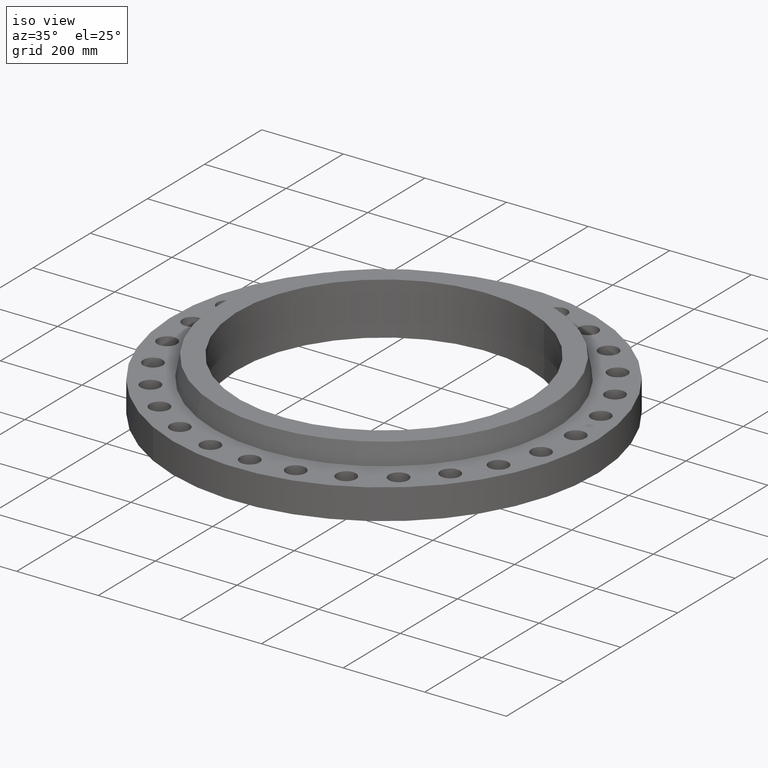
[diagram: clean part render]
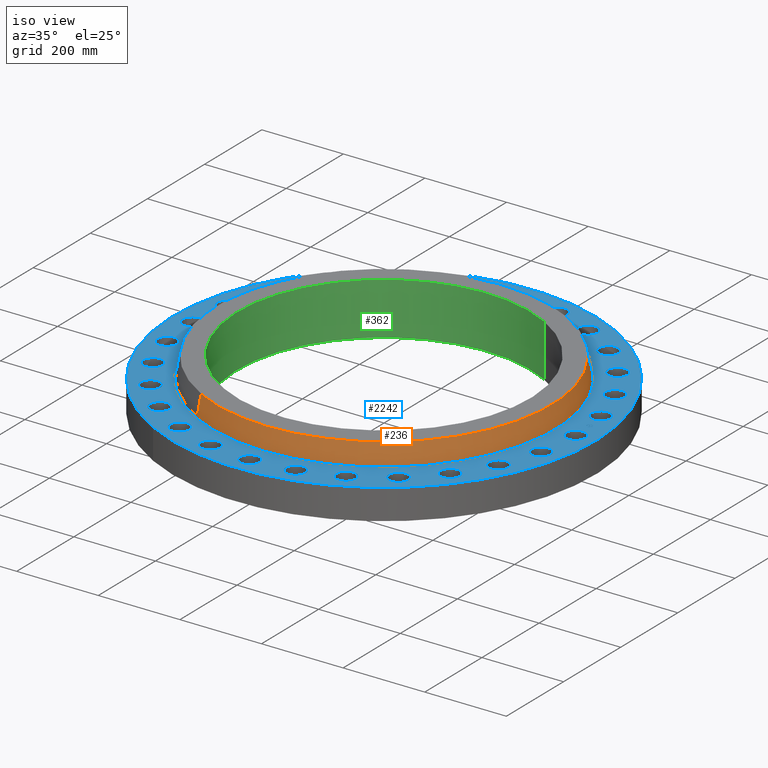
[diagram: same view with three faces highlighted in distinct colors, each labeled with its STEP entity id]
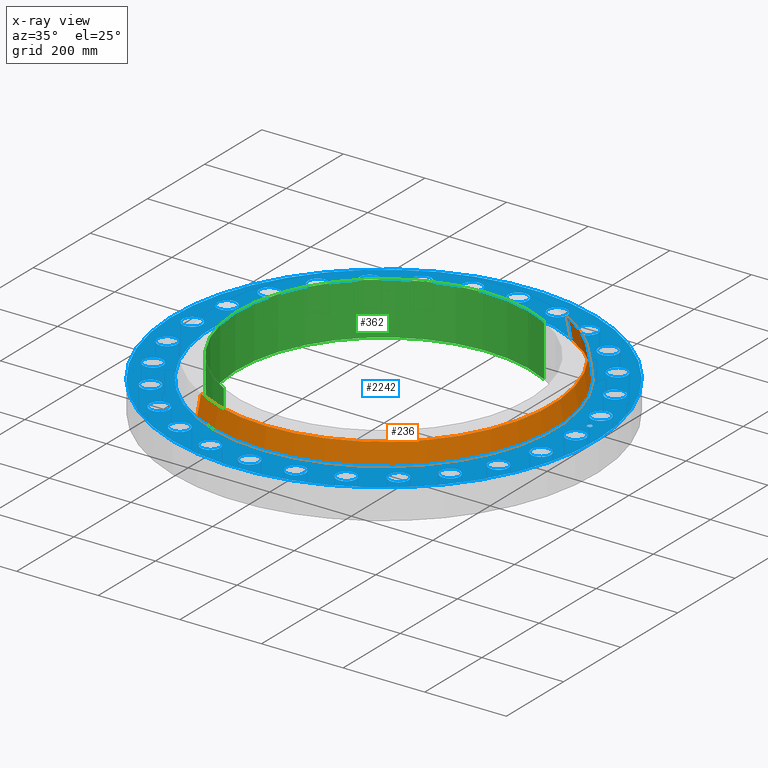
[diagram: x-ray of the same camera — body ghosted, the three highlighted faces saturated]
A machine part, iso view with three faces highlighted in distinct colors.
The next image is the same camera in x-ray (body ghosted, the three faces saturated) — at least one of them is partly hidden behind the body in this view.
Their STEP definitions:

[orange] entity #236 — the highlighted conical surface has half-angle 10 deg.
#172=AXIS2_PLACEMENT_3D('Circle Axis2P3D',#170,#171,$) ;
#209=AXIS2_PLACEMENT_3D('Cone Axis2P3D',#206,#207,#208) ;
#220=AXIS2_PLACEMENT_3D('Circle Axis2P3D',#218,#219,$) ;
#167=CARTESIAN_POINT('Vertex',(7.90633001531,14.4724400168,2.98958110935)) ;
#170=CARTESIAN_POINT('Axis2P3D Location',(0.,0.,2.98958110935)) ;
#174=CARTESIAN_POINT('Vertex',(-7.90633001531,-14.4724400168,2.98958110935)) ;
#206=CARTESIAN_POINT('Axis2P3D Location',(0.,0.,4.95041889068)) ;
#211=CARTESIAN_POINT('Line Origine',(7.82344965957,14.3207285433,3.97000000002)) ;
#215=CARTESIAN_POINT('Vertex',(7.74056930383,14.1690170697,4.95041889068)) ;
#218=CARTESIAN_POINT('Axis2P3D Location',(0.,0.,4.95041889068)) ;
#222=CARTESIAN_POINT('Vertex',(-7.74056930383,-14.1690170697,4.95041889068)) ;
#225=CARTESIAN_POINT('Line Origine',(-7.82344965957,-14.3207285433,3.97000000002)) ;
#171=DIRECTION('Axis2P3D Direction',(0.,0.,-0.0393700787402)) ;
#207=DIRECTION('Axis2P3D Direction',(0.,0.,-0.0393700787402)) ;
#208=DIRECTION('Axis2P3D XDirection',(-0.0188750212049,-0.0345504945626,0.)) ;
#212=DIRECTION('Vector Direction',(0.00327761303565,0.00599963041829,-0.03877195878)) ;
#219=DIRECTION('Axis2P3D Direction',(0.,0.,-0.0393700787402)) ;
#226=DIRECTION('Vector Direction',(-0.00327761303565,-0.00599963041829,-0.03877195878)) ;
#213=VECTOR('Line Direction',#212,0.0393700787402) ;
#227=VECTOR('Line Direction',#226,0.0393700787402) ;
#231=ORIENTED_EDGE('',*,*,#176,.F.) ;
#232=ORIENTED_EDGE('',*,*,#217,.T.) ;
#233=ORIENTED_EDGE('',*,*,#224,.T.) ;
#234=ORIENTED_EDGE('',*,*,#229,.F.) ;
#236=ADVANCED_FACE('PartBody',(#235),#210,.T.) ;
#173=CIRCLE('generated circle',#172,16.4912575128) ;
#221=CIRCLE('generated circle',#220,16.1455089071) ;
#210=CONICAL_SURFACE('Cone',#209,16.1455089071,0.174532925199) ;
#176=EDGE_CURVE('',#168,#175,#173,.T.) ;
#217=EDGE_CURVE('',#168,#216,#214,.F.) ;
#224=EDGE_CURVE('',#216,#223,#221,.T.) ;
#229=EDGE_CURVE('',#175,#223,#228,.F.) ;
#230=EDGE_LOOP('',(#231,#232,#233,#234)) ;
#235=FACE_OUTER_BOUND('',#230,.T.) ;
#214=LINE('Line',#211,#213) ;
#228=LINE('Line',#225,#227) ;
#168=VERTEX_POINT('',#167) ;
#175=VERTEX_POINT('',#174) ;
#216=VERTEX_POINT('',#215) ;
#223=VERTEX_POINT('',#222) ;

[blue] entity #2242 — the highlighted planar face has unit normal (0, 0, -1).
#65=AXIS2_PLACEMENT_3D('Circle Axis2P3D',#63,#64,$) ;
#82=AXIS2_PLACEMENT_3D('Circle Axis2P3D',#80,#81,$) ;
#115=AXIS2_PLACEMENT_3D('Circle Axis2P3D',#113,#114,$) ;
#139=AXIS2_PLACEMENT_3D('Circle Axis2P3D',#137,#138,$) ;
#156=AXIS2_PLACEMENT_3D('Circle Axis2P3D',#154,#155,$) ;
#191=AXIS2_PLACEMENT_3D('Circle Axis2P3D',#189,#190,$) ;
#959=AXIS2_PLACEMENT_3D('Circle Axis2P3D',#957,#958,$) ;
#971=AXIS2_PLACEMENT_3D('Circle Axis2P3D',#969,#970,$) ;
#1002=AXIS2_PLACEMENT_3D('Circle Axis2P3D',#1000,#1001,$) ;
#1014=AXIS2_PLACEMENT_3D('Circle Axis2P3D',#1012,#1013,$) ;
#1045=AXIS2_PLACEMENT_3D('Circle Axis2P3D',#1043,#1044,$) ;
#1057=AXIS2_PLACEMENT_3D('Circle Axis2P3D',#1055,#1056,$) ;
#1088=AXIS2_PLACEMENT_3D('Circle Axis2P3D',#1086,#1087,$) ;
#1100=AXIS2_PLACEMENT_3D('Circle Axis2P3D',#1098,#1099,$) ;
#1131=AXIS2_PLACEMENT_3D('Circle Axis2P3D',#1129,#1130,$) ;
#1143=AXIS2_PLACEMENT_3D('Circle Axis2P3D',#1141,#1142,$) ;
#1174=AXIS2_PLACEMENT_3D('Circle Axis2P3D',#1172,#1173,$) ;
#1186=AXIS2_PLACEMENT_3D('Circle Axis2P3D',#1184,#1185,$) ;
#1217=AXIS2_PLACEMENT_3D('Circle Axis2P3D',#1215,#1216,$) ;
#1229=AXIS2_PLACEMENT_3D('Circle Axis2P3D',#1227,#1228,$) ;
#1260=AXIS2_PLACEMENT_3D('Circle Axis2P3D',#1258,#1259,$) ;
#1272=AXIS2_PLACEMENT_3D('Circle Axis2P3D',#1270,#1271,$) ;
#1303=AXIS2_PLACEMENT_3D('Circle Axis2P3D',#1301,#1302,$) ;
#1315=AXIS2_PLACEMENT_3D('Circle Axis2P3D',#1313,#1314,$) ;
#1346=AXIS2_PLACEMENT_3D('Circle Axis2P3D',#1344,#1345,$) ;
#1358=AXIS2_PLACEMENT_3D('Circle Axis2P3D',#1356,#1357,$) ;
#1389=AXIS2_PLACEMENT_3D('Circle Axis2P3D',#1387,#1388,$) ;
#1401=AXIS2_PLACEMENT_3D('Circle Axis2P3D',#1399,#1400,$) ;
#1432=AXIS2_PLACEMENT_3D('Circle Axis2P3D',#1430,#1431,$) ;
#1444=AXIS2_PLACEMENT_3D('Circle Axis2P3D',#1442,#1443,$) ;
#1475=AXIS2_PLACEMENT_3D('Circle Axis2P3D',#1473,#1474,$) ;
#1487=AXIS2_PLACEMENT_3D('Circle Axis2P3D',#1485,#1486,$) ;
#1518=AXIS2_PLACEMENT_3D('Circle Axis2P3D',#1516,#1517,$) ;
#1530=AXIS2_PLACEMENT_3D('Circle Axis2P3D',#1528,#1529,$) ;
#1561=AXIS2_PLACEMENT_3D('Circle Axis2P3D',#1559,#1560,$) ;
#1573=AXIS2_PLACEMENT_3D('Circle Axis2P3D',#1571,#1572,$) ;
#1604=AXIS2_PLACEMENT_3D('Circle Axis2P3D',#1602,#1603,$) ;
#1616=AXIS2_PLACEMENT_3D('Circle Axis2P3D',#1614,#1615,$) ;
#1647=AXIS2_PLACEMENT_3D('Circle Axis2P3D',#1645,#1646,$) ;
#1659=AXIS2_PLACEMENT_3D('Circle Axis2P3D',#1657,#1658,$) ;
#1690=AXIS2_PLACEMENT_3D('Circle Axis2P3D',#1688,#1689,$) ;
#1702=AXIS2_PLACEMENT_3D('Circle Axis2P3D',#1700,#1701,$) ;
#1733=AXIS2_PLACEMENT_3D('Circle Axis2P3D',#1731,#1732,$) ;
#1745=AXIS2_PLACEMENT_3D('Circle Axis2P3D',#1743,#1744,$) ;
#1776=AXIS2_PLACEMENT_3D('Circle Axis2P3D',#1774,#1775,$) ;
#1788=AXIS2_PLACEMENT_3D('Circle Axis2P3D',#1786,#1787,$) ;
#1819=AXIS2_PLACEMENT_3D('Circle Axis2P3D',#1817,#1818,$) ;
#1831=AXIS2_PLACEMENT_3D('Circle Axis2P3D',#1829,#1830,$) ;
#1862=AXIS2_PLACEMENT_3D('Circle Axis2P3D',#1860,#1861,$) ;
#1874=AXIS2_PLACEMENT_3D('Circle Axis2P3D',#1872,#1873,$) ;
#1905=AXIS2_PLACEMENT_3D('Circle Axis2P3D',#1903,#1904,$) ;
#1917=AXIS2_PLACEMENT_3D('Circle Axis2P3D',#1915,#1916,$) ;
#1948=AXIS2_PLACEMENT_3D('Circle Axis2P3D',#1946,#1947,$) ;
#1960=AXIS2_PLACEMENT_3D('Circle Axis2P3D',#1958,#1959,$) ;
#1991=AXIS2_PLACEMENT_3D('Circle Axis2P3D',#1989,#1990,$) ;
#2003=AXIS2_PLACEMENT_3D('Circle Axis2P3D',#2001,#2002,$) ;
#2034=AXIS2_PLACEMENT_3D('Circle Axis2P3D',#2032,#2033,$) ;
#2046=AXIS2_PLACEMENT_3D('Circle Axis2P3D',#2044,#2045,$) ;
#2077=AXIS2_PLACEMENT_3D('Circle Axis2P3D',#2075,#2076,$) ;
#2089=AXIS2_PLACEMENT_3D('Circle Axis2P3D',#2087,#2088,$) ;
#2102=AXIS2_PLACEMENT_3D('Plane Axis2P3D',#2099,#2100,#2101) ;
#2226=AXIS2_PLACEMENT_3D('Circle Axis2P3D',#2224,#2225,$) ;
#2235=AXIS2_PLACEMENT_3D('Circle Axis2P3D',#2233,#2234,$) ;
#46=CARTESIAN_POINT('Vertex',(17.6750723919,0.45066000629,2.94000000001)) ;
#60=CARTESIAN_POINT('Vertex',(19.3249276083,-0.45066000629,2.94000000001)) ;
#63=CARTESIAN_POINT('Axis2P3D Location',(18.5000000001,0.,2.94000000001)) ;
#80=CARTESIAN_POINT('Axis2P3D Location',(18.5000000001,0.,2.94000000001)) ;
#110=CARTESIAN_POINT('Vertex',(-9.7682953491,-17.8807446986,2.94000000001)) ;
#113=CARTESIAN_POINT('Axis2P3D Location',(0.,0.,2.94000000001)) ;
#117=CARTESIAN_POINT('Vertex',(9.7682953491,17.8807446986,2.94000000001)) ;
#137=CARTESIAN_POINT('Axis2P3D Location',(0.,0.,2.94000000001)) ;
#154=CARTESIAN_POINT('Axis2P3D Location',(0.,0.,2.94000000001)) ;
#158=CARTESIAN_POINT('Vertex',(7.93465853456,14.5242950235,2.94000000001)) ;
#160=CARTESIAN_POINT('Vertex',(-7.93465853456,-14.5242950235,2.94000000001)) ;
#189=CARTESIAN_POINT('Axis2P3D Location',(0.,0.,2.94000000001)) ;
#947=CARTESIAN_POINT('Vertex',(-17.3322027102,3.49371259735,2.94000000001)) ;
#954=CARTESIAN_POINT('Vertex',(-18.7401300407,4.73956195906,2.94000000001)) ;
#957=CARTESIAN_POINT('Axis2P3D Location',(-18.0361663754,4.11663727821,2.94000000001)) ;
#969=CARTESIAN_POINT('Axis2P3D Location',(-18.0361663754,4.11663727821,2.94000000001)) ;
#990=CARTESIAN_POINT('Vertex',(16.1202240116,-7.26289586289,2.94000000001)) ;
#997=CARTESIAN_POINT('Vertex',(17.2156241009,-8.79080248452,2.94000000001)) ;
#1000=CARTESIAN_POINT('Axis2P3D Location',(16.6679240563,-8.02684917371,2.94000000001)) ;
#1012=CARTESIAN_POINT('Axis2P3D Location',(16.6679240563,-8.02684917371,2.94000000001)) ;
#1033=CARTESIAN_POINT('Vertex',(-16.1202240116,7.26289586289,2.94000000001)) ;
#1040=CARTESIAN_POINT('Vertex',(-17.2156241009,8.79080248452,2.94000000001)) ;
#1043=CARTESIAN_POINT('Axis2P3D Location',(-16.6679240563,8.02684917371,2.94000000001)) ;
#1055=CARTESIAN_POINT('Axis2P3D Location',(-16.6679240563,8.02684917371,2.94000000001)) ;
#1076=CARTESIAN_POINT('Vertex',(14.0999099689,-10.6678872027,2.94000000001)) ;
#1083=CARTESIAN_POINT('Vertex',(14.8278548825,-12.4012354662,2.94000000001)) ;
#1086=CARTESIAN_POINT('Axis2P3D Location',(14.4638824257,-11.5345613344,2.94000000001)) ;
#1098=CARTESIAN_POINT('Axis2P3D Location',(14.4638824257,-11.5345613344,2.94000000001)) ;
#1119=CARTESIAN_POINT('Vertex',(-14.0999099689,10.6678872027,2.94000000001)) ;
#1126=CARTESIAN_POINT('Vertex',(-14.8278548825,12.4012354662,2.94000000001)) ;
#1129=CARTESIAN_POINT('Axis2P3D Location',(-14.4638824257,11.5345613344,2.94000000001)) ;
#1141=CARTESIAN_POINT('Axis2P3D Location',(-14.4638824257,11.5345613344,2.94000000001)) ;
#1162=CARTESIAN_POINT('Vertex',(11.3725675643,-13.5379461329,2.94000000001)) ;
#1169=CARTESIAN_POINT('Vertex',(11.6965551046,-15.3898187186,2.94000000001)) ;
#1172=CARTESIAN_POINT('Axis2P3D Location',(11.5345613344,-14.4638824257,2.94000000001)) ;
#1184=CARTESIAN_POINT('Axis2P3D Location',(11.5345613344,-14.4638824257,2.94000000001)) ;
#1205=CARTESIAN_POINT('Vertex',(-11.3725675643,13.5379461329,2.94000000001)) ;
#1212=CARTESIAN_POINT('Vertex',(-11.6965551046,15.3898187186,2.94000000001)) ;
#1215=CARTESIAN_POINT('Axis2P3D Location',(-11.5345613344,14.4638824257,2.94000000001)) ;
#1227=CARTESIAN_POINT('Axis2P3D Location',(-11.5345613344,14.4638824257,2.94000000001)) ;
#1248=CARTESIAN_POINT('Vertex',(8.07495713424,-15.7291559144,2.94000000001)) ;
#1255=CARTESIAN_POINT('Vertex',(7.97874121317,-17.6066921981,2.94000000001)) ;
#1258=CARTESIAN_POINT('Axis2P3D Location',(8.02684917371,-16.6679240563,2.94000000001)) ;
#1270=CARTESIAN_POINT('Axis2P3D Location',(8.02684917371,-16.6679240563,2.94000000001)) ;
#1291=CARTESIAN_POINT('Vertex',(-8.07495713424,15.7291559144,2.94000000001)) ;
#1298=CARTESIAN_POINT('Vertex',(-7.97874121317,17.6066921981,2.94000000001)) ;
#1301=CARTESIAN_POINT('Axis2P3D Location',(-8.02684917371,16.6679240563,2.94000000001)) ;
#1313=CARTESIAN_POINT('Axis2P3D Location',(-8.02684917371,16.6679240563,2.94000000001)) ;
#1334=CARTESIAN_POINT('Vertex',(4.37243463543,-17.1316401392,2.94000000001)) ;
#1341=CARTESIAN_POINT('Vertex',(3.86083992099,-18.9406926117,2.94000000001)) ;
#1344=CARTESIAN_POINT('Axis2P3D Location',(4.11663727821,-18.0361663754,2.94000000001)) ;
#1356=CARTESIAN_POINT('Axis2P3D Location',(4.11663727821,-18.0361663754,2.94000000001)) ;
#1377=CARTESIAN_POINT('Vertex',(-4.37243463543,17.1316401392,2.94000000001)) ;
#1384=CARTESIAN_POINT('Vertex',(-3.86083992099,18.9406926117,2.94000000001)) ;
#1387=CARTESIAN_POINT('Axis2P3D Location',(-4.11663727821,18.0361663754,2.94000000001)) ;
#1399=CARTESIAN_POINT('Axis2P3D Location',(-4.11663727821,18.0361663754,2.94000000001)) ;
#1420=CARTESIAN_POINT('Vertex',(0.45066000629,-17.6750723919,2.94000000001)) ;
#1427=CARTESIAN_POINT('Vertex',(-0.45066000629,-19.3249276083,2.94000000001)) ;
#1430=CARTESIAN_POINT('Axis2P3D Location',(3.00269360394E-015,-18.5000000001,2.94000000001)) ;
#1442=CARTESIAN_POINT('Axis2P3D Location',(3.00269360394E-015,-18.5000000001,2.94000000001)) ;
#1463=CARTESIAN_POINT('Vertex',(-0.45066000629,17.6750723919,2.94000000001)) ;
#1470=CARTESIAN_POINT('Vertex',(0.45066000629,19.3249276083,2.94000000001)) ;
#1473=CARTESIAN_POINT('Axis2P3D Location',(-1.16046499124E-015,18.5000000001,2.94000000001)) ;
#1485=CARTESIAN_POINT('Axis2P3D Location',(-1.16046499124E-015,18.5000000001,2.94000000001)) ;
#1506=CARTESIAN_POINT('Vertex',(-3.49371259735,-17.3322027102,2.94000000001)) ;
#1513=CARTESIAN_POINT('Vertex',(-4.73956195906,-18.7401300407,2.94000000001)) ;
#1516=CARTESIAN_POINT('Axis2P3D Location',(-4.11663727821,-18.0361663754,2.94000000001)) ;
#1528=CARTESIAN_POINT('Axis2P3D Location',(-4.11663727821,-18.0361663754,2.94000000001)) ;
#1549=CARTESIAN_POINT('Vertex',(3.49371259735,17.3322027102,2.94000000001)) ;
#1556=CARTESIAN_POINT('Vertex',(4.73956195906,18.7401300407,2.94000000001)) ;
#1559=CARTESIAN_POINT('Axis2P3D Location',(4.11663727821,18.0361663754,2.94000000001)) ;
#1571=CARTESIAN_POINT('Axis2P3D Location',(4.11663727821,18.0361663754,2.94000000001)) ;
#1592=CARTESIAN_POINT('Vertex',(-7.26289586289,-16.1202240116,2.94000000001)) ;
#1599=CARTESIAN_POINT('Vertex',(-8.79080248452,-17.2156241009,2.94000000001)) ;
#1602=CARTESIAN_POINT('Axis2P3D Location',(-8.02684917371,-16.6679240563,2.94000000001)) ;
#1614=CARTESIAN_POINT('Axis2P3D Location',(-8.02684917371,-16.6679240563,2.94000000001)) ;
#1635=CARTESIAN_POINT('Vertex',(7.26289586289,16.1202240116,2.94000000001)) ;
#1642=CARTESIAN_POINT('Vertex',(8.79080248452,17.2156241009,2.94000000001)) ;
#1645=CARTESIAN_POINT('Axis2P3D Location',(8.02684917371,16.6679240563,2.94000000001)) ;
#1657=CARTESIAN_POINT('Axis2P3D Location',(8.02684917371,16.6679240563,2.94000000001)) ;
#1678=CARTESIAN_POINT('Vertex',(-10.6678872027,-14.0999099689,2.94000000001)) ;
#1685=CARTESIAN_POINT('Vertex',(-12.4012354662,-14.8278548825,2.94000000001)) ;
#1688=CARTESIAN_POINT('Axis2P3D Location',(-11.5345613344,-14.4638824257,2.94000000001)) ;
#1700=CARTESIAN_POINT('Axis2P3D Location',(-11.5345613344,-14.4638824257,2.94000000001)) ;
#1721=CARTESIAN_POINT('Vertex',(10.6678872027,14.0999099689,2.94000000001)) ;
#1728=CARTESIAN_POINT('Vertex',(12.4012354662,14.8278548825,2.94000000001)) ;
#1731=CARTESIAN_POINT('Axis2P3D Location',(11.5345613344,14.4638824257,2.94000000001)) ;
#1743=CARTESIAN_POINT('Axis2P3D Location',(11.5345613344,14.4638824257,2.94000000001)) ;
#1764=CARTESIAN_POINT('Vertex',(-13.5379461329,-11.3725675643,2.94000000001)) ;
#1771=CARTESIAN_POINT('Vertex',(-15.3898187186,-11.6965551046,2.94000000001)) ;
#1774=CARTESIAN_POINT('Axis2P3D Location',(-14.4638824257,-11.5345613344,2.94000000001)) ;
#1786=CARTESIAN_POINT('Axis2P3D Location',(-14.4638824257,-11.5345613344,2.94000000001)) ;
#1807=CARTESIAN_POINT('Vertex',(13.5379461329,11.3725675643,2.94000000001)) ;
#1814=CARTESIAN_POINT('Vertex',(15.3898187186,11.6965551046,2.94000000001)) ;
#1817=CARTESIAN_POINT('Axis2P3D Location',(14.4638824257,11.5345613344,2.94000000001)) ;
#1829=CARTESIAN_POINT('Axis2P3D Location',(14.4638824257,11.5345613344,2.94000000001)) ;
#1850=CARTESIAN_POINT('Vertex',(-15.7291559144,-8.07495713424,2.94000000001)) ;
#1857=CARTESIAN_POINT('Vertex',(-17.6066921981,-7.97874121317,2.94000000001)) ;
#1860=CARTESIAN_POINT('Axis2P3D Location',(-16.6679240563,-8.02684917371,2.94000000001)) ;
#1872=CARTESIAN_POINT('Axis2P3D Location',(-16.6679240563,-8.02684917371,2.94000000001)) ;
#1893=CARTESIAN_POINT('Vertex',(15.7291559144,8.07495713424,2.94000000001)) ;
#1900=CARTESIAN_POINT('Vertex',(17.6066921981,7.97874121317,2.94000000001)) ;
#1903=CARTESIAN_POINT('Axis2P3D Location',(16.6679240563,8.02684917371,2.94000000001)) ;
#1915=CARTESIAN_POINT('Axis2P3D Location',(16.6679240563,8.02684917371,2.94000000001)) ;
#1936=CARTESIAN_POINT('Vertex',(-17.1316401392,-4.37243463543,2.94000000001)) ;
#1943=CARTESIAN_POINT('Vertex',(-18.9406926117,-3.86083992099,2.94000000001)) ;
#1946=CARTESIAN_POINT('Axis2P3D Location',(-18.0361663754,-4.11663727821,2.94000000001)) ;
#1958=CARTESIAN_POINT('Axis2P3D Location',(-18.0361663754,-4.11663727821,2.94000000001)) ;
#1979=CARTESIAN_POINT('Vertex',(17.1316401392,4.37243463543,2.94000000001)) ;
#1986=CARTESIAN_POINT('Vertex',(18.9406926117,3.86083992099,2.94000000001)) ;
#1989=CARTESIAN_POINT('Axis2P3D Location',(18.0361663754,4.11663727821,2.94000000001)) ;
#2001=CARTESIAN_POINT('Axis2P3D Location',(18.0361663754,4.11663727821,2.94000000001)) ;
#2022=CARTESIAN_POINT('Vertex',(-17.6750723919,-0.45066000629,2.94000000001)) ;
#2029=CARTESIAN_POINT('Vertex',(-19.3249276083,0.45066000629,2.94000000001)) ;
#2032=CARTESIAN_POINT('Axis2P3D Location',(-18.5000000001,-1.04812469607E-014,2.94000000001)) ;
#2044=CARTESIAN_POINT('Axis2P3D Location',(-18.5000000001,-1.04812469607E-014,2.94000000001)) ;
#2065=CARTESIAN_POINT('Vertex',(17.3322027102,-3.49371259735,2.94000000001)) ;
#2072=CARTESIAN_POINT('Vertex',(18.7401300407,-4.73956195906,2.94000000001)) ;
#2075=CARTESIAN_POINT('Axis2P3D Location',(18.0361663754,-4.11663727821,2.94000000001)) ;
#2087=CARTESIAN_POINT('Axis2P3D Location',(18.0361663754,-4.11663727821,2.94000000001)) ;
#2099=CARTESIAN_POINT('Axis2P3D Location',(0.,20.3750000001,2.94000000001)) ;
#2224=CARTESIAN_POINT('Axis2P3D Location',(18.3836758831,2.07134280792,2.94000000001)) ;
#2228=CARTESIAN_POINT('Vertex',(18.3559646753,2.31728657987,2.94000000001)) ;
#2230=CARTESIAN_POINT('Vertex',(18.4113870909,1.82539903597,2.94000000001)) ;
#2233=CARTESIAN_POINT('Axis2P3D Location',(18.3836758831,2.07134280792,2.94000000001)) ;
#64=DIRECTION('Axis2P3D Direction',(0.,-0.,-0.0393700787402)) ;
#81=DIRECTION('Axis2P3D Direction',(0.,-0.,-0.0393700787402)) ;
#114=DIRECTION('Axis2P3D Direction',(0.,0.,-0.0393700787402)) ;
#138=DIRECTION('Axis2P3D Direction',(0.,0.,-0.0393700787402)) ;
#155=DIRECTION('Axis2P3D Direction',(0.,0.,-0.0393700787402)) ;
#190=DIRECTION('Axis2P3D Direction',(0.,0.,-0.0393700787402)) ;
#958=DIRECTION('Axis2P3D Direction',(0.,0.,-0.0393700787402)) ;
#970=DIRECTION('Axis2P3D Direction',(0.,0.,-0.0393700787402)) ;
#1001=DIRECTION('Axis2P3D Direction',(0.,-0.,-0.0393700787402)) ;
#1013=DIRECTION('Axis2P3D Direction',(0.,-0.,-0.0393700787402)) ;
#1044=DIRECTION('Axis2P3D Direction',(0.,0.,-0.0393700787402)) ;
#1056=DIRECTION('Axis2P3D Direction',(0.,0.,-0.0393700787402)) ;
#1087=DIRECTION('Axis2P3D Direction',(0.,-0.,-0.0393700787402)) ;
#1099=DIRECTION('Axis2P3D Direction',(0.,-0.,-0.0393700787402)) ;
#1130=DIRECTION('Axis2P3D Direction',(0.,0.,-0.0393700787402)) ;
#1142=DIRECTION('Axis2P3D Direction',(0.,0.,-0.0393700787402)) ;
#1173=DIRECTION('Axis2P3D Direction',(0.,-0.,-0.0393700787402)) ;
#1185=DIRECTION('Axis2P3D Direction',(0.,-0.,-0.0393700787402)) ;
#1216=DIRECTION('Axis2P3D Direction',(0.,0.,-0.0393700787402)) ;
#1228=DIRECTION('Axis2P3D Direction',(0.,0.,-0.0393700787402)) ;
#1259=DIRECTION('Axis2P3D Direction',(0.,-0.,-0.0393700787402)) ;
#1271=DIRECTION('Axis2P3D Direction',(0.,-0.,-0.0393700787402)) ;
#1302=DIRECTION('Axis2P3D Direction',(0.,0.,-0.0393700787402)) ;
#1314=DIRECTION('Axis2P3D Direction',(0.,0.,-0.0393700787402)) ;
#1345=DIRECTION('Axis2P3D Direction',(0.,-0.,-0.0393700787402)) ;
#1357=DIRECTION('Axis2P3D Direction',(0.,-0.,-0.0393700787402)) ;
#1388=DIRECTION('Axis2P3D Direction',(0.,0.,-0.0393700787402)) ;
#1400=DIRECTION('Axis2P3D Direction',(0.,0.,-0.0393700787402)) ;
#1431=DIRECTION('Axis2P3D Direction',(0.,-0.,-0.0393700787402)) ;
#1443=DIRECTION('Axis2P3D Direction',(0.,-0.,-0.0393700787402)) ;
#1474=DIRECTION('Axis2P3D Direction',(0.,0.,-0.0393700787402)) ;
#1486=DIRECTION('Axis2P3D Direction',(0.,0.,-0.0393700787402)) ;
#1517=DIRECTION('Axis2P3D Direction',(-0.,0.,-0.0393700787402)) ;
#1529=DIRECTION('Axis2P3D Direction',(-0.,0.,-0.0393700787402)) ;
#1560=DIRECTION('Axis2P3D Direction',(0.,0.,-0.0393700787402)) ;
#1572=DIRECTION('Axis2P3D Direction',(0.,0.,-0.0393700787402)) ;
#1603=DIRECTION('Axis2P3D Direction',(-0.,0.,-0.0393700787402)) ;
#1615=DIRECTION('Axis2P3D Direction',(-0.,0.,-0.0393700787402)) ;
#1646=DIRECTION('Axis2P3D Direction',(0.,0.,-0.0393700787402)) ;
#1658=DIRECTION('Axis2P3D Direction',(0.,0.,-0.0393700787402)) ;
#1689=DIRECTION('Axis2P3D Direction',(-0.,0.,-0.0393700787402)) ;
#1701=DIRECTION('Axis2P3D Direction',(-0.,0.,-0.0393700787402)) ;
#1732=DIRECTION('Axis2P3D Direction',(0.,0.,-0.0393700787402)) ;
#1744=DIRECTION('Axis2P3D Direction',(0.,0.,-0.0393700787402)) ;
#1775=DIRECTION('Axis2P3D Direction',(-0.,0.,-0.0393700787402)) ;
#1787=DIRECTION('Axis2P3D Direction',(-0.,0.,-0.0393700787402)) ;
#1818=DIRECTION('Axis2P3D Direction',(0.,0.,-0.0393700787402)) ;
#1830=DIRECTION('Axis2P3D Direction',(0.,0.,-0.0393700787402)) ;
#1861=DIRECTION('Axis2P3D Direction',(-0.,0.,-0.0393700787402)) ;
#1873=DIRECTION('Axis2P3D Direction',(-0.,0.,-0.0393700787402)) ;
#1904=DIRECTION('Axis2P3D Direction',(0.,0.,-0.0393700787402)) ;
#1916=DIRECTION('Axis2P3D Direction',(0.,0.,-0.0393700787402)) ;
#1947=DIRECTION('Axis2P3D Direction',(-0.,0.,-0.0393700787402)) ;
#1959=DIRECTION('Axis2P3D Direction',(-0.,0.,-0.0393700787402)) ;
#1990=DIRECTION('Axis2P3D Direction',(0.,0.,-0.0393700787402)) ;
#2002=DIRECTION('Axis2P3D Direction',(0.,0.,-0.0393700787402)) ;
#2033=DIRECTION('Axis2P3D Direction',(-0.,0.,-0.0393700787402)) ;
#2045=DIRECTION('Axis2P3D Direction',(-0.,0.,-0.0393700787402)) ;
#2076=DIRECTION('Axis2P3D Direction',(0.,-0.,-0.0393700787402)) ;
#2088=DIRECTION('Axis2P3D Direction',(0.,-0.,-0.0393700787402)) ;
#2100=DIRECTION('Axis2P3D Direction',(0.,0.,-0.0393700787402)) ;
#2101=DIRECTION('Axis2P3D XDirection',(0.0393700787402,0.,0.)) ;
#2225=DIRECTION('Axis2P3D Direction',(0.,0.,-0.0393700787402)) ;
#2234=DIRECTION('Axis2P3D Direction',(0.,0.,-0.0393700787402)) ;
#2105=ORIENTED_EDGE('',*,*,#141,.F.) ;
#2106=ORIENTED_EDGE('',*,*,#119,.F.) ;
#2109=ORIENTED_EDGE('',*,*,#67,.T.) ;
#2110=ORIENTED_EDGE('',*,*,#84,.T.) ;
#2113=ORIENTED_EDGE('',*,*,#193,.T.) ;
#2114=ORIENTED_EDGE('',*,*,#162,.T.) ;
#2117=ORIENTED_EDGE('',*,*,#2091,.T.) ;
#2118=ORIENTED_EDGE('',*,*,#2079,.T.) ;
#2121=ORIENTED_EDGE('',*,*,#1016,.T.) ;
#2122=ORIENTED_EDGE('',*,*,#1004,.T.) ;
#2125=ORIENTED_EDGE('',*,*,#1102,.T.) ;
#2126=ORIENTED_EDGE('',*,*,#1090,.T.) ;
#2129=ORIENTED_EDGE('',*,*,#1188,.T.) ;
#2130=ORIENTED_EDGE('',*,*,#1176,.T.) ;
#2133=ORIENTED_EDGE('',*,*,#1274,.T.) ;
#2134=ORIENTED_EDGE('',*,*,#1262,.T.) ;
#2137=ORIENTED_EDGE('',*,*,#1360,.T.) ;
#2138=ORIENTED_EDGE('',*,*,#1348,.T.) ;
#2141=ORIENTED_EDGE('',*,*,#1446,.T.) ;
#2142=ORIENTED_EDGE('',*,*,#1434,.T.) ;
#2145=ORIENTED_EDGE('',*,*,#1532,.T.) ;
#2146=ORIENTED_EDGE('',*,*,#1520,.T.) ;
#2149=ORIENTED_EDGE('',*,*,#1618,.T.) ;
#2150=ORIENTED_EDGE('',*,*,#1606,.T.) ;
#2153=ORIENTED_EDGE('',*,*,#1704,.T.) ;
#2154=ORIENTED_EDGE('',*,*,#1692,.T.) ;
#2157=ORIENTED_EDGE('',*,*,#1790,.T.) ;
#2158=ORIENTED_EDGE('',*,*,#1778,.T.) ;
#2161=ORIENTED_EDGE('',*,*,#1876,.T.) ;
#2162=ORIENTED_EDGE('',*,*,#1864,.T.) ;
#2165=ORIENTED_EDGE('',*,*,#1962,.T.) ;
#2166=ORIENTED_EDGE('',*,*,#1950,.T.) ;
#2169=ORIENTED_EDGE('',*,*,#2048,.T.) ;
#2170=ORIENTED_EDGE('',*,*,#2036,.T.) ;
#2173=ORIENTED_EDGE('',*,*,#973,.T.) ;
#2174=ORIENTED_EDGE('',*,*,#961,.T.) ;
#2177=ORIENTED_EDGE('',*,*,#1059,.T.) ;
#2178=ORIENTED_EDGE('',*,*,#1047,.T.) ;
#2181=ORIENTED_EDGE('',*,*,#1145,.T.) ;
#2182=ORIENTED_EDGE('',*,*,#1133,.T.) ;
#2185=ORIENTED_EDGE('',*,*,#1231,.T.) ;
#2186=ORIENTED_EDGE('',*,*,#1219,.T.) ;
#2189=ORIENTED_EDGE('',*,*,#1317,.T.) ;
#2190=ORIENTED_EDGE('',*,*,#1305,.T.) ;
#2193=ORIENTED_EDGE('',*,*,#1403,.T.) ;
#2194=ORIENTED_EDGE('',*,*,#1391,.T.) ;
#2197=ORIENTED_EDGE('',*,*,#1489,.T.) ;
#2198=ORIENTED_EDGE('',*,*,#1477,.T.) ;
#2201=ORIENTED_EDGE('',*,*,#1575,.T.) ;
#2202=ORIENTED_EDGE('',*,*,#1563,.T.) ;
#2205=ORIENTED_EDGE('',*,*,#1661,.T.) ;
#2206=ORIENTED_EDGE('',*,*,#1649,.T.) ;
#2209=ORIENTED_EDGE('',*,*,#1747,.T.) ;
#2210=ORIENTED_EDGE('',*,*,#1735,.T.) ;
#2213=ORIENTED_EDGE('',*,*,#1833,.T.) ;
#2214=ORIENTED_EDGE('',*,*,#1821,.T.) ;
#2217=ORIENTED_EDGE('',*,*,#1919,.T.) ;
#2218=ORIENTED_EDGE('',*,*,#1907,.T.) ;
#2221=ORIENTED_EDGE('',*,*,#2005,.T.) ;
#2222=ORIENTED_EDGE('',*,*,#1993,.T.) ;
#2239=ORIENTED_EDGE('',*,*,#2232,.T.) ;
#2240=ORIENTED_EDGE('',*,*,#2237,.T.) ;
#2111=FACE_BOUND('',#2108,.T.) ;
#2115=FACE_BOUND('',#2112,.T.) ;
#2119=FACE_BOUND('',#2116,.T.) ;
#2123=FACE_BOUND('',#2120,.T.) ;
#2127=FACE_BOUND('',#2124,.T.) ;
#2131=FACE_BOUND('',#2128,.T.) ;
#2135=FACE_BOUND('',#2132,.T.) ;
#2139=FACE_BOUND('',#2136,.T.) ;
#2143=FACE_BOUND('',#2140,.T.) ;
#2147=FACE_BOUND('',#2144,.T.) ;
#2151=FACE_BOUND('',#2148,.T.) ;
#2155=FACE_BOUND('',#2152,.T.) ;
#2159=FACE_BOUND('',#2156,.T.) ;
#2163=FACE_BOUND('',#2160,.T.) ;
#2167=FACE_BOUND('',#2164,.T.) ;
#2171=FACE_BOUND('',#2168,.T.) ;
#2175=FACE_BOUND('',#2172,.T.) ;
#2179=FACE_BOUND('',#2176,.T.) ;
#2183=FACE_BOUND('',#2180,.T.) ;
#2187=FACE_BOUND('',#2184,.T.) ;
#2191=FACE_BOUND('',#2188,.T.) ;
#2195=FACE_BOUND('',#2192,.T.) ;
#2199=FACE_BOUND('',#2196,.T.) ;
#2203=FACE_BOUND('',#2200,.T.) ;
#2207=FACE_BOUND('',#2204,.T.) ;
#2211=FACE_BOUND('',#2208,.T.) ;
#2215=FACE_BOUND('',#2212,.T.) ;
#2219=FACE_BOUND('',#2216,.T.) ;
#2223=FACE_BOUND('',#2220,.T.) ;
#2241=FACE_BOUND('',#2238,.T.) ;
#2242=ADVANCED_FACE('PartBody',(#2107,#2111,#2115,#2119,#2123,#2127,#2131,#2135,#2139,#2143,#2147,#2151,#2155,#2159,#2163,#2167,#2171,#2175,#2179,#2183,#2187,#2191,#2195,#2199,#2203,#2207,#2211,#2215,#2219,#2223,#2241),#2103,.F.) ;
#66=CIRCLE('generated circle',#65,0.940000000004) ;
#83=CIRCLE('generated circle',#82,0.940000000004) ;
#116=CIRCLE('generated circle',#115,20.3750000001) ;
#140=CIRCLE('generated circle',#139,20.3750000001) ;
#157=CIRCLE('generated circle',#156,16.5503459779) ;
#192=CIRCLE('generated circle',#191,16.5503459779) ;
#960=CIRCLE('generated circle',#959,0.940000000004) ;
#972=CIRCLE('generated circle',#971,0.940000000004) ;
#1003=CIRCLE('generated circle',#1002,0.940000000004) ;
#1015=CIRCLE('generated circle',#1014,0.940000000004) ;
#1046=CIRCLE('generated circle',#1045,0.940000000004) ;
#1058=CIRCLE('generated circle',#1057,0.940000000004) ;
#1089=CIRCLE('generated circle',#1088,0.940000000004) ;
#1101=CIRCLE('generated circle',#1100,0.940000000004) ;
#1132=CIRCLE('generated circle',#1131,0.940000000004) ;
#1144=CIRCLE('generated circle',#1143,0.940000000004) ;
#1175=CIRCLE('generated circle',#1174,0.940000000004) ;
#1187=CIRCLE('generated circle',#1186,0.940000000004) ;
#1218=CIRCLE('generated circle',#1217,0.940000000004) ;
#1230=CIRCLE('generated circle',#1229,0.940000000004) ;
#1261=CIRCLE('generated circle',#1260,0.940000000004) ;
#1273=CIRCLE('generated circle',#1272,0.940000000004) ;
#1304=CIRCLE('generated circle',#1303,0.940000000004) ;
#1316=CIRCLE('generated circle',#1315,0.940000000004) ;
#1347=CIRCLE('generated circle',#1346,0.940000000004) ;
#1359=CIRCLE('generated circle',#1358,0.940000000004) ;
#1390=CIRCLE('generated circle',#1389,0.940000000004) ;
#1402=CIRCLE('generated circle',#1401,0.940000000004) ;
#1433=CIRCLE('generated circle',#1432,0.940000000004) ;
#1445=CIRCLE('generated circle',#1444,0.940000000004) ;
#1476=CIRCLE('generated circle',#1475,0.940000000004) ;
#1488=CIRCLE('generated circle',#1487,0.940000000004) ;
#1519=CIRCLE('generated circle',#1518,0.940000000004) ;
#1531=CIRCLE('generated circle',#1530,0.940000000004) ;
#1562=CIRCLE('generated circle',#1561,0.940000000004) ;
#1574=CIRCLE('generated circle',#1573,0.940000000004) ;
#1605=CIRCLE('generated circle',#1604,0.940000000004) ;
#1617=CIRCLE('generated circle',#1616,0.940000000004) ;
#1648=CIRCLE('generated circle',#1647,0.940000000004) ;
#1660=CIRCLE('generated circle',#1659,0.940000000004) ;
#1691=CIRCLE('generated circle',#1690,0.940000000004) ;
#1703=CIRCLE('generated circle',#1702,0.940000000004) ;
#1734=CIRCLE('generated circle',#1733,0.940000000004) ;
#1746=CIRCLE('generated circle',#1745,0.940000000004) ;
#1777=CIRCLE('generated circle',#1776,0.940000000004) ;
#1789=CIRCLE('generated circle',#1788,0.940000000004) ;
#1820=CIRCLE('generated circle',#1819,0.940000000004) ;
#1832=CIRCLE('generated circle',#1831,0.940000000004) ;
#1863=CIRCLE('generated circle',#1862,0.940000000004) ;
#1875=CIRCLE('generated circle',#1874,0.940000000004) ;
#1906=CIRCLE('generated circle',#1905,0.940000000004) ;
#1918=CIRCLE('generated circle',#1917,0.940000000004) ;
#1949=CIRCLE('generated circle',#1948,0.940000000004) ;
#1961=CIRCLE('generated circle',#1960,0.940000000004) ;
#1992=CIRCLE('generated circle',#1991,0.940000000004) ;
#2004=CIRCLE('generated circle',#2003,0.940000000004) ;
#2035=CIRCLE('generated circle',#2034,0.940000000004) ;
#2047=CIRCLE('generated circle',#2046,0.940000000004) ;
#2078=CIRCLE('generated circle',#2077,0.940000000004) ;
#2090=CIRCLE('generated circle',#2089,0.940000000004) ;
#2227=CIRCLE('generated circle',#2226,0.247500000001) ;
#2236=CIRCLE('generated circle',#2235,0.247500000001) ;
#67=EDGE_CURVE('',#47,#61,#66,.T.) ;
#84=EDGE_CURVE('',#61,#47,#83,.T.) ;
#119=EDGE_CURVE('',#111,#118,#116,.T.) ;
#141=EDGE_CURVE('',#118,#111,#140,.T.) ;
#162=EDGE_CURVE('',#159,#161,#157,.T.) ;
#193=EDGE_CURVE('',#161,#159,#192,.T.) ;
#961=EDGE_CURVE('',#948,#955,#960,.T.) ;
#973=EDGE_CURVE('',#955,#948,#972,.T.) ;
#1004=EDGE_CURVE('',#991,#998,#1003,.T.) ;
#1016=EDGE_CURVE('',#998,#991,#1015,.T.) ;
#1047=EDGE_CURVE('',#1034,#1041,#1046,.T.) ;
#1059=EDGE_CURVE('',#1041,#1034,#1058,.T.) ;
#1090=EDGE_CURVE('',#1077,#1084,#1089,.T.) ;
#1102=EDGE_CURVE('',#1084,#1077,#1101,.T.) ;
#1133=EDGE_CURVE('',#1120,#1127,#1132,.T.) ;
#1145=EDGE_CURVE('',#1127,#1120,#1144,.T.) ;
#1176=EDGE_CURVE('',#1163,#1170,#1175,.T.) ;
#1188=EDGE_CURVE('',#1170,#1163,#1187,.T.) ;
#1219=EDGE_CURVE('',#1206,#1213,#1218,.T.) ;
#1231=EDGE_CURVE('',#1213,#1206,#1230,.T.) ;
#1262=EDGE_CURVE('',#1249,#1256,#1261,.T.) ;
#1274=EDGE_CURVE('',#1256,#1249,#1273,.T.) ;
#1305=EDGE_CURVE('',#1292,#1299,#1304,.T.) ;
#1317=EDGE_CURVE('',#1299,#1292,#1316,.T.) ;
#1348=EDGE_CURVE('',#1335,#1342,#1347,.T.) ;
#1360=EDGE_CURVE('',#1342,#1335,#1359,.T.) ;
#1391=EDGE_CURVE('',#1378,#1385,#1390,.T.) ;
#1403=EDGE_CURVE('',#1385,#1378,#1402,.T.) ;
#1434=EDGE_CURVE('',#1421,#1428,#1433,.T.) ;
#1446=EDGE_CURVE('',#1428,#1421,#1445,.T.) ;
#1477=EDGE_CURVE('',#1464,#1471,#1476,.T.) ;
#1489=EDGE_CURVE('',#1471,#1464,#1488,.T.) ;
#1520=EDGE_CURVE('',#1507,#1514,#1519,.T.) ;
#1532=EDGE_CURVE('',#1514,#1507,#1531,.T.) ;
#1563=EDGE_CURVE('',#1550,#1557,#1562,.T.) ;
#1575=EDGE_CURVE('',#1557,#1550,#1574,.T.) ;
#1606=EDGE_CURVE('',#1593,#1600,#1605,.T.) ;
#1618=EDGE_CURVE('',#1600,#1593,#1617,.T.) ;
#1649=EDGE_CURVE('',#1636,#1643,#1648,.T.) ;
#1661=EDGE_CURVE('',#1643,#1636,#1660,.T.) ;
#1692=EDGE_CURVE('',#1679,#1686,#1691,.T.) ;
#1704=EDGE_CURVE('',#1686,#1679,#1703,.T.) ;
#1735=EDGE_CURVE('',#1722,#1729,#1734,.T.) ;
#1747=EDGE_CURVE('',#1729,#1722,#1746,.T.) ;
#1778=EDGE_CURVE('',#1765,#1772,#1777,.T.) ;
#1790=EDGE_CURVE('',#1772,#1765,#1789,.T.) ;
#1821=EDGE_CURVE('',#1808,#1815,#1820,.T.) ;
#1833=EDGE_CURVE('',#1815,#1808,#1832,.T.) ;
#1864=EDGE_CURVE('',#1851,#1858,#1863,.T.) ;
#1876=EDGE_CURVE('',#1858,#1851,#1875,.T.) ;
#1907=EDGE_CURVE('',#1894,#1901,#1906,.T.) ;
#1919=EDGE_CURVE('',#1901,#1894,#1918,.T.) ;
#1950=EDGE_CURVE('',#1937,#1944,#1949,.T.) ;
#1962=EDGE_CURVE('',#1944,#1937,#1961,.T.) ;
#1993=EDGE_CURVE('',#1980,#1987,#1992,.T.) ;
#2005=EDGE_CURVE('',#1987,#1980,#2004,.T.) ;
#2036=EDGE_CURVE('',#2023,#2030,#2035,.T.) ;
#2048=EDGE_CURVE('',#2030,#2023,#2047,.T.) ;
#2079=EDGE_CURVE('',#2066,#2073,#2078,.T.) ;
#2091=EDGE_CURVE('',#2073,#2066,#2090,.T.) ;
#2232=EDGE_CURVE('',#2229,#2231,#2227,.T.) ;
#2237=EDGE_CURVE('',#2231,#2229,#2236,.T.) ;
#2104=EDGE_LOOP('',(#2105,#2106)) ;
#2108=EDGE_LOOP('',(#2109,#2110)) ;
#2112=EDGE_LOOP('',(#2113,#2114)) ;
#2116=EDGE_LOOP('',(#2117,#2118)) ;
#2120=EDGE_LOOP('',(#2121,#2122)) ;
#2124=EDGE_LOOP('',(#2125,#2126)) ;
#2128=EDGE_LOOP('',(#2129,#2130)) ;
#2132=EDGE_LOOP('',(#2133,#2134)) ;
#2136=EDGE_LOOP('',(#2137,#2138)) ;
#2140=EDGE_LOOP('',(#2141,#2142)) ;
#2144=EDGE_LOOP('',(#2145,#2146)) ;
#2148=EDGE_LOOP('',(#2149,#2150)) ;
#2152=EDGE_LOOP('',(#2153,#2154)) ;
#2156=EDGE_LOOP('',(#2157,#2158)) ;
#2160=EDGE_LOOP('',(#2161,#2162)) ;
#2164=EDGE_LOOP('',(#2165,#2166)) ;
#2168=EDGE_LOOP('',(#2169,#2170)) ;
#2172=EDGE_LOOP('',(#2173,#2174)) ;
#2176=EDGE_LOOP('',(#2177,#2178)) ;
#2180=EDGE_LOOP('',(#2181,#2182)) ;
#2184=EDGE_LOOP('',(#2185,#2186)) ;
#2188=EDGE_LOOP('',(#2189,#2190)) ;
#2192=EDGE_LOOP('',(#2193,#2194)) ;
#2196=EDGE_LOOP('',(#2197,#2198)) ;
#2200=EDGE_LOOP('',(#2201,#2202)) ;
#2204=EDGE_LOOP('',(#2205,#2206)) ;
#2208=EDGE_LOOP('',(#2209,#2210)) ;
#2212=EDGE_LOOP('',(#2213,#2214)) ;
#2216=EDGE_LOOP('',(#2217,#2218)) ;
#2220=EDGE_LOOP('',(#2221,#2222)) ;
#2238=EDGE_LOOP('',(#2239,#2240)) ;
#2107=FACE_OUTER_BOUND('',#2104,.T.) ;
#2103=PLANE('',#2102) ;
#47=VERTEX_POINT('',#46) ;
#61=VERTEX_POINT('',#60) ;
#111=VERTEX_POINT('',#110) ;
#118=VERTEX_POINT('',#117) ;
#159=VERTEX_POINT('',#158) ;
#161=VERTEX_POINT('',#160) ;
#948=VERTEX_POINT('',#947) ;
#955=VERTEX_POINT('',#954) ;
#991=VERTEX_POINT('',#990) ;
#998=VERTEX_POINT('',#997) ;
#1034=VERTEX_POINT('',#1033) ;
#1041=VERTEX_POINT('',#1040) ;
#1077=VERTEX_POINT('',#1076) ;
#1084=VERTEX_POINT('',#1083) ;
#1120=VERTEX_POINT('',#1119) ;
#1127=VERTEX_POINT('',#1126) ;
#1163=VERTEX_POINT('',#1162) ;
#1170=VERTEX_POINT('',#1169) ;
#1206=VERTEX_POINT('',#1205) ;
#1213=VERTEX_POINT('',#1212) ;
#1249=VERTEX_POINT('',#1248) ;
#1256=VERTEX_POINT('',#1255) ;
#1292=VERTEX_POINT('',#1291) ;
#1299=VERTEX_POINT('',#1298) ;
#1335=VERTEX_POINT('',#1334) ;
#1342=VERTEX_POINT('',#1341) ;
#1378=VERTEX_POINT('',#1377) ;
#1385=VERTEX_POINT('',#1384) ;
#1421=VERTEX_POINT('',#1420) ;
#1428=VERTEX_POINT('',#1427) ;
#1464=VERTEX_POINT('',#1463) ;
#1471=VERTEX_POINT('',#1470) ;
#1507=VERTEX_POINT('',#1506) ;
#1514=VERTEX_POINT('',#1513) ;
#1550=VERTEX_POINT('',#1549) ;
#1557=VERTEX_POINT('',#1556) ;
#1593=VERTEX_POINT('',#1592) ;
#1600=VERTEX_POINT('',#1599) ;
#1636=VERTEX_POINT('',#1635) ;
#1643=VERTEX_POINT('',#1642) ;
#1679=VERTEX_POINT('',#1678) ;
#1686=VERTEX_POINT('',#1685) ;
#1722=VERTEX_POINT('',#1721) ;
#1729=VERTEX_POINT('',#1728) ;
#1765=VERTEX_POINT('',#1764) ;
#1772=VERTEX_POINT('',#1771) ;
#1808=VERTEX_POINT('',#1807) ;
#1815=VERTEX_POINT('',#1814) ;
#1851=VERTEX_POINT('',#1850) ;
#1858=VERTEX_POINT('',#1857) ;
#1894=VERTEX_POINT('',#1893) ;
#1901=VERTEX_POINT('',#1900) ;
#1937=VERTEX_POINT('',#1936) ;
#1944=VERTEX_POINT('',#1943) ;
#1980=VERTEX_POINT('',#1979) ;
#1987=VERTEX_POINT('',#1986) ;
#2023=VERTEX_POINT('',#2022) ;
#2030=VERTEX_POINT('',#2029) ;
#2066=VERTEX_POINT('',#2065) ;
#2073=VERTEX_POINT('',#2072) ;
#2229=VERTEX_POINT('',#2228) ;
#2231=VERTEX_POINT('',#2230) ;

[green] entity #362 — the highlighted cylindrical surface (partial cylindrical patch) has radius 358.775 mm, axis along (0, 0, -1).
#303=AXIS2_PLACEMENT_3D('Circle Axis2P3D',#301,#302,$) ;
#323=AXIS2_PLACEMENT_3D('Cylinder Axis2P3D',#320,#321,#322) ;
#353=AXIS2_PLACEMENT_3D('Circle Axis2P3D',#351,#352,$) ;
#301=CARTESIAN_POINT('Axis2P3D Location',(0.,0.,5.00000000002)) ;
#305=CARTESIAN_POINT('Vertex',(-6.77188573281,-12.3958536868,5.00000000002)) ;
#307=CARTESIAN_POINT('Vertex',(6.77188573281,12.3958536868,5.00000000002)) ;
#320=CARTESIAN_POINT('Axis2P3D Location',(0.,0.,2.46875000001)) ;
#325=CARTESIAN_POINT('Line Origine',(6.77188573281,12.3958536868,2.46875000001)) ;
#329=CARTESIAN_POINT('Vertex',(6.77188573281,12.3958536868,-0.0625000000003)) ;
#336=CARTESIAN_POINT('Vertex',(-6.77188573281,-12.3958536868,-0.0625000000003)) ;
#339=CARTESIAN_POINT('Line Origine',(-6.77188573281,-12.3958536868,2.46875000001)) ;
#351=CARTESIAN_POINT('Axis2P3D Location',(0.,0.,-0.0625000000003)) ;
#302=DIRECTION('Axis2P3D Direction',(0.,0.,-0.0393700787402)) ;
#321=DIRECTION('Axis2P3D Direction',(0.,0.,-0.0393700787402)) ;
#322=DIRECTION('Axis2P3D XDirection',(-0.0188750212049,-0.0345504945626,0.)) ;
#326=DIRECTION('Vector Direction',(0.,0.,-0.0393700787402)) ;
#340=DIRECTION('Vector Direction',(0.,0.,-0.0393700787402)) ;
#352=DIRECTION('Axis2P3D Direction',(0.,0.,-0.0393700787402)) ;
#327=VECTOR('Line Direction',#326,0.0393700787402) ;
#341=VECTOR('Line Direction',#340,0.0393700787402) ;
#357=ORIENTED_EDGE('',*,*,#309,.F.) ;
#358=ORIENTED_EDGE('',*,*,#343,.T.) ;
#359=ORIENTED_EDGE('',*,*,#355,.T.) ;
#360=ORIENTED_EDGE('',*,*,#331,.F.) ;
#362=ADVANCED_FACE('PartBody',(#361),#324,.F.) ;
#304=CIRCLE('generated circle',#303,14.1250000001) ;
#354=CIRCLE('generated circle',#353,14.1250000001) ;
#324=CYLINDRICAL_SURFACE('generated cylinder',#323,14.1250000001) ;
#309=EDGE_CURVE('',#306,#308,#304,.T.) ;
#331=EDGE_CURVE('',#308,#330,#328,.T.) ;
#343=EDGE_CURVE('',#306,#337,#342,.T.) ;
#355=EDGE_CURVE('',#337,#330,#354,.T.) ;
#356=EDGE_LOOP('',(#357,#358,#359,#360)) ;
#361=FACE_OUTER_BOUND('',#356,.T.) ;
#328=LINE('Line',#325,#327) ;
#342=LINE('Line',#339,#341) ;
#306=VERTEX_POINT('',#305) ;
#308=VERTEX_POINT('',#307) ;
#330=VERTEX_POINT('',#329) ;
#337=VERTEX_POINT('',#336) ;